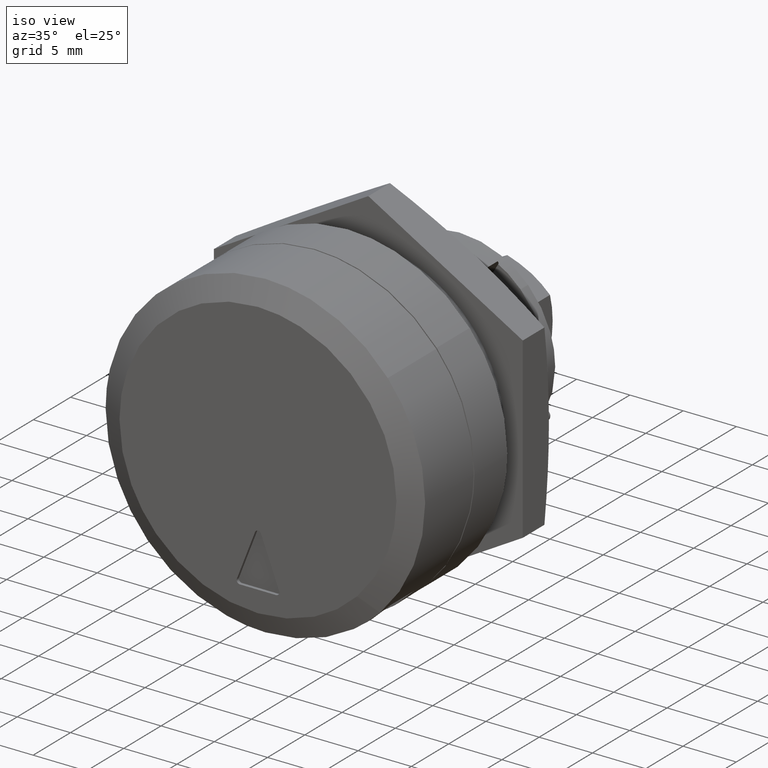
[diagram: clean part render]
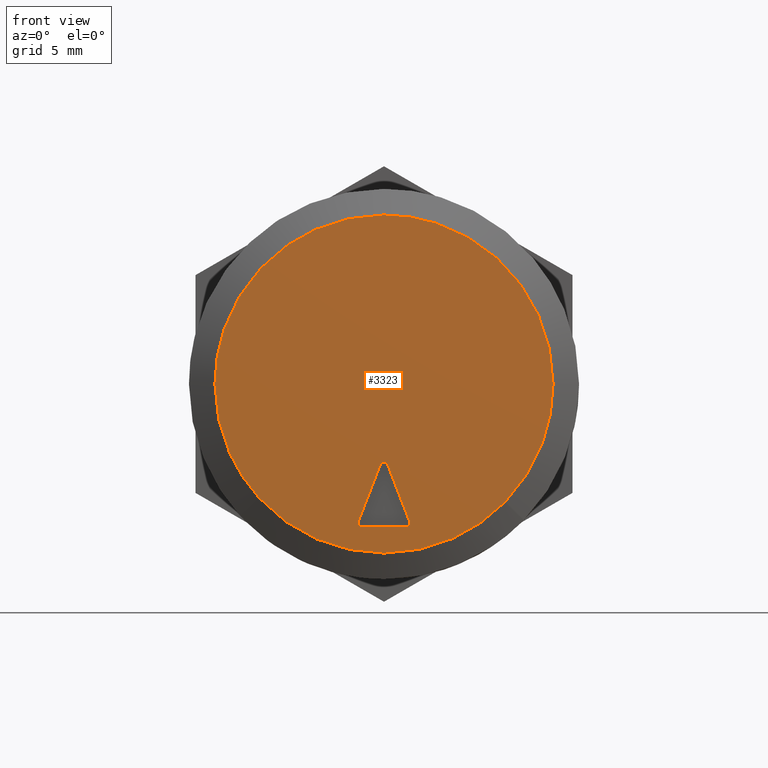
[diagram: tour spotlight — one face highlighted and labeled with its STEP entity id]
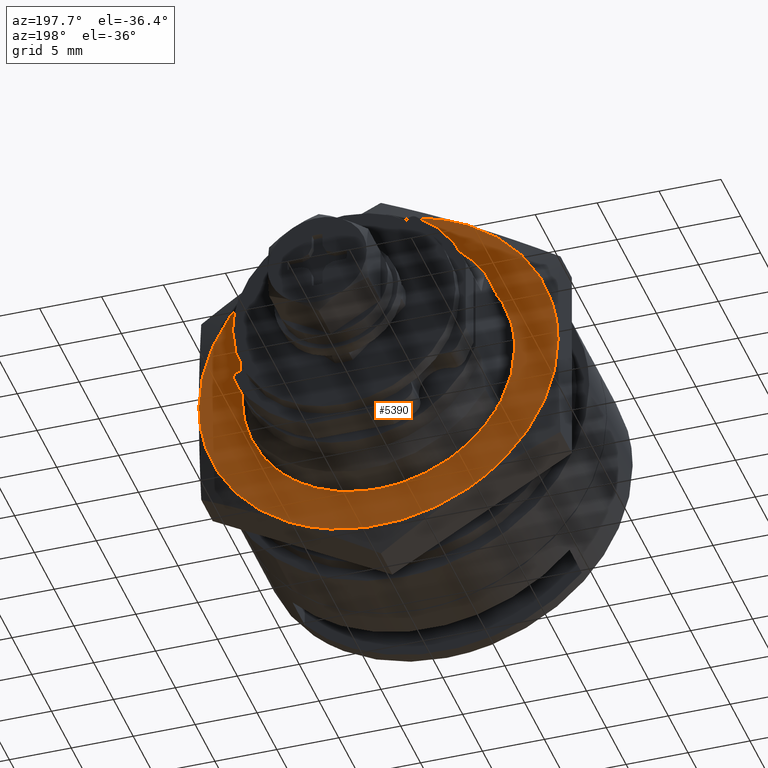
[diagram: tour spotlight — one face highlighted and labeled with its STEP entity id]
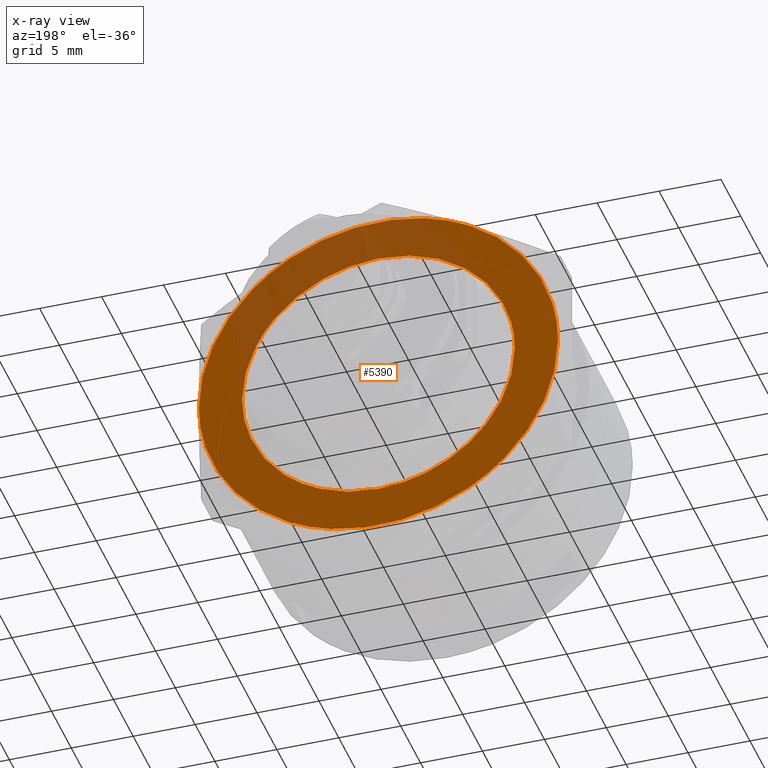
[diagram: x-ray of the same camera — body ghosted, this tour face saturated]
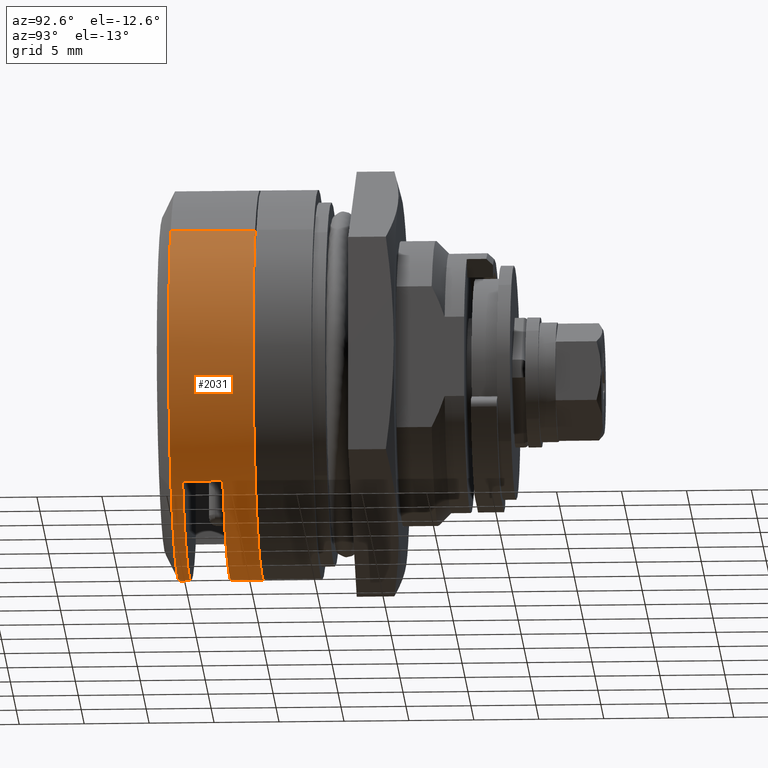
[diagram: tour spotlight — one face highlighted and labeled with its STEP entity id]
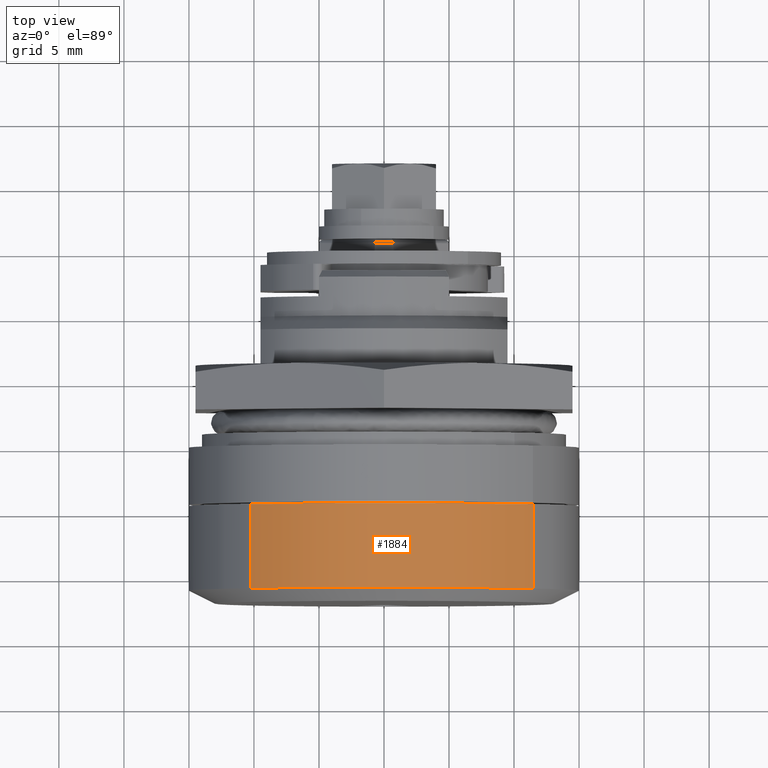
[diagram: tour spotlight — one face highlighted and labeled with its STEP entity id]
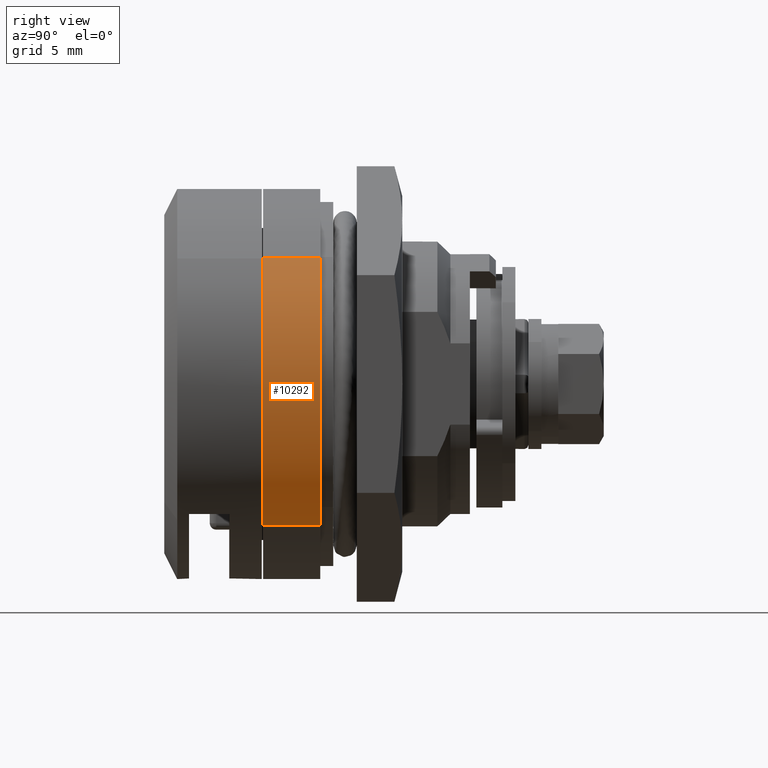
[diagram: tour spotlight — one face highlighted and labeled with its STEP entity id]
A machine part: a face-by-face anatomy tour. The part has 214 B-rep faces; the first image is the clean iso view, then the 5 largest visible faces are spotlighted one at a time (largest first), each with its STEP entity span.

Face 1 — front view, entity #3323. In plain terms, the highlighted face is a freeform B-spline surface patch.
Definition (entity closure, byte-faithful):
#911=CARTESIAN_POINT('',(-12.0,0.0,-13.0));
#912=VERTEX_POINT('',#911);
#913=CARTESIAN_POINT('',(-12.000000152438821,-9.316462147315200,-9.066615422653708));
#914=VERTEX_POINT('',#913);
#915=CARTESIAN_POINT('',(-12.0,0.0,-13.0));
#916=CARTESIAN_POINT('',(-12.000000015048110,-0.919679962936393,-13.000151477299420));
#917=CARTESIAN_POINT('',(-12.000000041602130,-2.542561584886363,-12.827024814932029));
#918=CARTESIAN_POINT('',(-12.000000081559589,-4.984603803596667,-12.089382059892291));
#919=CARTESIAN_POINT('',(-12.000000118657150,-7.251844494267134,-10.907185220064671));
#920=CARTESIAN_POINT('',(-12.000000141945280,-8.675145754781404,-9.725794053252749));
#921=CARTESIAN_POINT('',(-12.000000152438821,-9.316462147315200,-9.066615422653708));
#922=B_SPLINE_CURVE_WITH_KNOTS('',3,(#915,#916,#917,#918,#919,#920,#921),.UNSPECIFIED.,.F.,.U.,(4,1,1,1,4),(0.000000018140970,2.759011826455566,4.868852735689525,7.627854665548858,10.386866473861479),.UNSPECIFIED.);
#923=EDGE_CURVE('',#912,#914,#922,.T.);
#925=CARTESIAN_POINT('',(-11.999999848085141,9.584605882547256,-8.782673160848001));
#926=VERTEX_POINT('',#925);
#927=CARTESIAN_POINT('',(-11.999999848085141,9.584605882547256,-8.782673160848001));
#928=CARTESIAN_POINT('',(-11.999999856198770,9.072702271723482,-9.341422307882418));
#929=CARTESIAN_POINT('',(-11.999999872005461,8.075422711544398,-10.254785107212239));
#930=CARTESIAN_POINT('',(-11.999999898378309,6.411515894942661,-11.359618600989290));
#931=CARTESIAN_POINT('',(-11.999999926983371,4.606756568208613,-12.217407289992440));
#932=CARTESIAN_POINT('',(-11.999999961299119,2.441724718858577,-12.844032294940961));
#933=CARTESIAN_POINT('',(-11.999999986654350,0.841992042975007,-13.000098156035840));
#934=CARTESIAN_POINT('',(-12.0,0.0,-13.0));
#935=B_SPLINE_CURVE_WITH_KNOTS('',3,(#927,#928,#929,#930,#931,#932,#933,#934),.UNSPECIFIED.,.F.,.U.,(4,1,1,1,1,4),(0.000000019269073,2.273363186650766,4.041538777810411,5.978101250578590,8.251468486434568,10.777427251723600),.UNSPECIFIED.);
#936=EDGE_CURVE('',#926,#912,#935,.T.);
#1001=CARTESIAN_POINT('',(-12.0,-12.999999999999909,0.000001524951381));
#1002=VERTEX_POINT('',#1001);
#1003=CARTESIAN_POINT('',(-12.000000152438821,-9.316462147315200,-9.066615422653708));
#1004=CARTESIAN_POINT('',(-12.000000141421310,-9.954390171507482,-8.411326201624489));
#1005=CARTESIAN_POINT('',(-12.000000120582150,-10.928553954523190,-7.171872057518602));
#1006=CARTESIAN_POINT('',(-12.000000088628889,-11.931018232567750,-5.271387699067865));
#1007=CARTESIAN_POINT('',(-12.000000062098930,-12.495723037490320,-3.693460596470620));
#1008=CARTESIAN_POINT('',(-12.000000032947950,-12.894592737089971,-1.959646847090359));
#1009=CARTESIAN_POINT('',(-12.000000012740109,-13.000077419382309,-0.757743193792093));
#1010=CARTESIAN_POINT('',(-12.0,-12.999999999999909,0.000001524951381));
#1011=B_SPLINE_CURVE_WITH_KNOTS('',3,(#1003,#1004,#1005,#1006,#1007,#1008,#1009,#1010),.UNSPECIFIED.,.F.,.U.,(4,1,1,1,1,4),(0.000000016242499,2.743540714113641,4.703216927274964,6.427715221822490,7.760300117512838,10.033518823041220),.UNSPECIFIED.);
#1012=EDGE_CURVE('',#914,#1002,#1011,.T.);
#1091=CARTESIAN_POINT('',(-12.0,12.999999999999909,-0.000001524951578));
#1092=VERTEX_POINT('',#1091);
#1093=CARTESIAN_POINT('',(-12.0,12.999999999999909,-0.000001524951578));
#1094=CARTESIAN_POINT('',(-11.999999980018771,13.000385948258010,-1.155180492682295));
#1095=CARTESIAN_POINT('',(-11.999999944404379,12.723661137702811,-3.214155735879978));
#1096=CARTESIAN_POINT('',(-11.999999892303761,11.552321180139939,-6.226260350726116));
#1097=CARTESIAN_POINT('',(-11.999999862812320,10.365318962939631,-7.931247397927341));
#1098=CARTESIAN_POINT('',(-11.999999848085141,9.584605882547256,-8.782673160848001));
#1099=B_SPLINE_CURVE_WITH_KNOTS('',3,(#1093,#1094,#1095,#1096,#1097,#1098),.UNSPECIFIED.,.F.,.U.,(4,1,1,4),(4.080686E-009,3.465452551908194,6.177544267561840,9.642996815408528),.UNSPECIFIED.);
#1100=EDGE_CURVE('',#1092,#926,#1099,.T.);
#1102=CARTESIAN_POINT('',(-12.0,0.0,13.0));
#1103=VERTEX_POINT('',#1102);
#1104=CARTESIAN_POINT('',(-12.0,0.0,13.0));
#1105=CARTESIAN_POINT('',(-12.000000000000020,0.983813325752117,13.000223143433690));
#1106=CARTESIAN_POINT('',(-12.0,2.419506724860229,12.836175065007760));
#1107=CARTESIAN_POINT('',(-12.000000000000011,4.518261988779834,12.234543283883029));
#1108=CARTESIAN_POINT('',(-12.0,6.226117525003328,11.477522776477800));
#1109=CARTESIAN_POINT('',(-11.999999999999989,7.899220347690285,10.381673838327000));
#1110=CARTESIAN_POINT('',(-11.999999999999980,9.316680527343044,9.128314430869544));
#1111=CARTESIAN_POINT('',(-12.0,10.405938269971120,7.849754184187671));
#1112=CARTESIAN_POINT('',(-12.000000000000050,11.441731982581141,6.268359644291379));
#1113=CARTESIAN_POINT('',(-12.000000000000041,12.162885517440740,4.719075871125378));
#1114=CARTESIAN_POINT('',(-12.0,12.820823986583820,2.525841224548165));
#1115=CARTESIAN_POINT('',(-12.000000000000069,13.000282108281329,1.037003874066209));
#1116=CARTESIAN_POINT('',(-12.0,12.999999999999909,-0.000001524951578));
#1117=B_SPLINE_CURVE_WITH_KNOTS('',3,(#1104,#1105,#1106,#1107,#1108,#1109,#1110,#1111,#1112,#1113,#1114,#1115,#1116),.UNSPECIFIED.,.F.,.U.,(4,1,1,1,1,1,1,1,1,1,4),(0.000000063733694,2.951365858185291,4.307420317168457,6.540914454134750,8.535100663423348,10.289919153352949,12.204351521815040,13.560406796004211,15.953428008186901,17.309470791582552,20.420385141431389),.UNSPECIFIED.);
#1118=EDGE_CURVE('',#1103,#1092,#1117,.T.);
#1120=CARTESIAN_POINT('',(-12.0,-12.999999999999909,0.000001524951381));
#1121=CARTESIAN_POINT('',(-12.0,-13.000109554960700,0.877438647057232));
#1122=CARTESIAN_POINT('',(-12.000000000000020,-12.824393500372990,2.605689032999154));
#1123=CARTESIAN_POINT('',(-11.999999999999959,-12.128113229962111,4.851348779831528));
#1124=CARTESIAN_POINT('',(-12.000000000000020,-11.235746822990491,6.610459858897188));
#1125=CARTESIAN_POINT('',(-11.999999999999989,-10.080819175212531,8.305184580099553));
#1126=CARTESIAN_POINT('',(-12.000000000000041,-8.637911342323438,9.811493114748716));
#1127=CARTESIAN_POINT('',(-11.999999999999920,-6.952387201545800,11.029572369780389));
#1128=CARTESIAN_POINT('',(-12.000000000000041,-5.287393600638901,11.926132856466390));
#1129=CARTESIAN_POINT('',(-12.000000000000069,-3.030993108161917,12.749305796638140));
#1130=CARTESIAN_POINT('',(-11.999999999999750,-1.143358399296071,13.000344155762710));
#1131=CARTESIAN_POINT('',(-12.0,0.0,13.0));
#1132=B_SPLINE_CURVE_WITH_KNOTS('',3,(#1120,#1121,#1122,#1123,#1124,#1125,#1126,#1127,#1128,#1129,#1130,#1131),.UNSPECIFIED.,.F.,.U.,(4,1,1,1,1,1,1,1,1,4),(0.000000063916087,2.632296383756078,5.184863639251589,7.019514645310133,8.535099944566220,11.326898614056841,13.241340694329160,14.756918642442930,16.990405842883749,20.420383422452790),.UNSPECIFIED.);
#1133=EDGE_CURVE('',#1002,#1103,#1132,.T.);
#3118=CARTESIAN_POINT('',(-12.0,-0.279839440321647,-6.191880216239360));
#3119=VERTEX_POINT('',#3118);
#3120=CARTESIAN_POINT('',(-12.0,0.279839440597325,-6.191880216952881));
#3121=VERTEX_POINT('',#3120);
#3122=CARTESIAN_POINT('',(-12.0,-0.279839440321647,-6.191880216239360));
#3123=CARTESIAN_POINT('',(-11.999999999999989,-0.258374207550838,-6.135670470715750));
#3124=CARTESIAN_POINT('',(-12.000000000000030,-0.194725967789389,-6.055870872459950));
#3125=CARTESIAN_POINT('',(-11.999999999999959,-0.075641612627198,-6.003706631123224));
#3126=CARTESIAN_POINT('',(-12.000000000000041,0.022859923352837,-5.996311409355410));
#3127=CARTESIAN_POINT('',(-11.999999999999959,0.119144279778014,-6.018368614342978));
#3128=CARTESIAN_POINT('',(-12.000000000000060,0.216125610598961,-6.079610942148034));
#3129=CARTESIAN_POINT('',(-11.999999999999940,0.263646126875724,-6.149807007716513));
#3130=CARTESIAN_POINT('',(-12.0,0.279839440597325,-6.191880216952881));
#3131=B_SPLINE_CURVE_WITH_KNOTS('',3,(#3122,#3123,#3124,#3125,#3126,#3127,#3128,#3129,#3130),.UNSPECIFIED.,.F.,.U.,(4,1,1,1,1,1,4),(0.000000756291302,0.180357927171817,0.293096622276119,0.383249457891445,0.473431042042785,0.586165272018019,0.721429516173619),.UNSPECIFIED.);
#3132=EDGE_CURVE('',#3119,#3121,#3131,.T.);
#3153=CARTESIAN_POINT('',(-12.0,-1.979839440597330,-10.591880216952900));
#3154=VERTEX_POINT('',#3153);
#3155=CARTESIAN_POINT('',(-12.0,-1.979839440597330,-10.591880216952900));
#3156=CARTESIAN_POINT('',(-12.0,-0.279839440321647,-6.191880216239360));
#3157=QUASI_UNIFORM_CURVE('',1,(#3155,#3156),.UNSPECIFIED.,.F.,.U.);
#3158=EDGE_CURVE('',#3154,#3119,#3157,.T.);
#3184=CARTESIAN_POINT('',(-12.0,-1.700000000000000,-11.0));
#3185=VERTEX_POINT('',#3184);
#3186=CARTESIAN_POINT('',(-12.0,-1.700000000000000,-11.0));
#3187=CARTESIAN_POINT('',(-12.000000000000011,-1.766769176095426,-11.000305997040650));
#3188=CARTESIAN_POINT('',(-11.999999999999989,-1.869325680690929,-10.964253093585180));
#3189=CARTESIAN_POINT('',(-12.0,-1.962965556508403,-10.857780738359130));
#3190=CARTESIAN_POINT('',(-12.0,-2.008412932557316,-10.736632126377330));
#3191=CARTESIAN_POINT('',(-12.0,-1.999664680783060,-10.642743669029830));
#3192=CARTESIAN_POINT('',(-12.0,-1.979839440597330,-10.591880216952900));
#3193=B_SPLINE_CURVE_WITH_KNOTS('',3,(#3186,#3187,#3188,#3189,#3190,#3191,#3192),.UNSPECIFIED.,.F.,.U.,(4,1,1,1,4),(0.000000625449621,0.200047991925948,0.309129929953099,0.418260530807096,0.581936597731967),.UNSPECIFIED.);
#3194=EDGE_CURVE('',#3185,#3154,#3193,.T.);
#3211=CARTESIAN_POINT('',(-12.0,1.700000000000000,-11.0));
#3212=VERTEX_POINT('',#3211);
#3213=CARTESIAN_POINT('',(-12.0,1.700000000000000,-11.0));
#3214=CARTESIAN_POINT('',(-12.0,-1.700000000000000,-11.0));
#3215=QUASI_UNIFORM_CURVE('',1,(#3213,#3214),.UNSPECIFIED.,.F.,.U.);
#3216=EDGE_CURVE('',#3212,#3185,#3215,.T.);
#3242=CARTESIAN_POINT('',(-12.0,1.979839440597330,-10.591880216952900));
#3243=VERTEX_POINT('',#3242);
#3244=CARTESIAN_POINT('',(-12.0,1.979839440597330,-10.591880216952900));
#3245=CARTESIAN_POINT('',(-12.0,1.995171197645803,-10.631436537591229));
#3246=CARTESIAN_POINT('',(-12.0,2.009625809826327,-10.723312080552491));
#3247=CARTESIAN_POINT('',(-12.000000000000011,1.967587385704804,-10.860540046720310));
#3248=CARTESIAN_POINT('',(-11.999999999999959,1.857417331567697,-10.971122689053050));
#3249=CARTESIAN_POINT('',(-12.000000000000020,1.754587073012114,-11.000142618594870));
#3250=CARTESIAN_POINT('',(-12.0,1.700000000000000,-11.0));
#3251=B_SPLINE_CURVE_WITH_KNOTS('',3,(#3244,#3245,#3246,#3247,#3248,#3249,#3250),.UNSPECIFIED.,.F.,.U.,(4,1,1,1,4),(0.000000625449649,0.127292544665963,0.272807293228489,0.418260530807120,0.581936597731958),.UNSPECIFIED.);
#3252=EDGE_CURVE('',#3243,#3212,#3251,.T.);
#3269=CARTESIAN_POINT('',(-12.0,0.279839440597325,-6.191880216952881));
#3270=CARTESIAN_POINT('',(-12.0,1.979839440597330,-10.591880216952900));
#3271=QUASI_UNIFORM_CURVE('',1,(#3269,#3270),.UNSPECIFIED.,.F.,.U.);
#3272=EDGE_CURVE('',#3121,#3243,#3271,.T.);
#3302=CARTESIAN_POINT('',(-12.0,-14.298699949606860,14.298699949606950));
#3303=CARTESIAN_POINT('',(-12.0,-14.298699949606860,-14.298700646981301));
#3304=CARTESIAN_POINT('',(-12.0,14.298700646981199,14.298699949606950));
#3305=CARTESIAN_POINT('',(-12.0,14.298700646981199,-14.298700646981301));
#3306=B_SPLINE_SURFACE_WITH_KNOTS('',1,1,((#3302,#3304),(#3303,#3305)),.UNSPECIFIED.,.F.,.F.,.U.,(2,2),(2,2),(0.0,28.597400596588251),(0.0,28.597400596588059),.UNSPECIFIED.);
#3307=ORIENTED_EDGE('',*,*,#1118,.T.);
#3308=ORIENTED_EDGE('',*,*,#1100,.T.);
#3309=ORIENTED_EDGE('',*,*,#936,.T.);
#3310=ORIENTED_EDGE('',*,*,#923,.T.);
#3311=ORIENTED_EDGE('',*,*,#1012,.T.);
#3312=ORIENTED_EDGE('',*,*,#1133,.T.);
#3313=EDGE_LOOP('',(#3307,#3308,#3309,#3310,#3311,#3312));
#3314=FACE_OUTER_BOUND('',#3313,.T.);
#3315=ORIENTED_EDGE('',*,*,#3252,.F.);
#3316=ORIENTED_EDGE('',*,*,#3272,.F.);
#3317=ORIENTED_EDGE('',*,*,#3132,.F.);
#3318=ORIENTED_EDGE('',*,*,#3158,.F.);
#3319=ORIENTED_EDGE('',*,*,#3194,.F.);
#3320=ORIENTED_EDGE('',*,*,#3216,.F.);
#3321=EDGE_LOOP('',(#3315,#3316,#3317,#3318,#3319,#3320));
#3322=FACE_BOUND('',#3321,.T.);
#3323=ADVANCED_FACE('',(#3314,#3322),#3306,.F.);

Face 2 — auxiliary view, entity #5390. An x-ray twin of the same camera follows (body ghosted, this face saturated) — the face is partly hidden behind the body. In plain terms, the highlighted face is a freeform B-spline surface patch.
Definition (entity closure, byte-faithful):
#4111=CARTESIAN_POINT('',(61.198422999999998,-7.571900083592382,-7.979117747920952));
#4112=VERTEX_POINT('',#4111);
#4118=CARTESIAN_POINT('',(61.198423000000012,0.0,-11.0));
#4119=VERTEX_POINT('',#4118);
#4120=CARTESIAN_POINT('',(61.198423000000012,0.0,-11.0));
#4121=CARTESIAN_POINT('',(61.198423000000012,-0.739454084071970,-11.000097790272379));
#4122=CARTESIAN_POINT('',(61.198423000000020,-2.174815417914026,-10.854735065343791));
#4123=CARTESIAN_POINT('',(61.198423000000027,-4.138742403636235,-10.254602025094780));
#4124=CARTESIAN_POINT('',(61.198423000000020,-5.963499545313847,-9.317277022889421));
#4125=CARTESIAN_POINT('',(61.198423000000119,-7.035587389978425,-8.488194437969778));
#4126=CARTESIAN_POINT('',(61.198422999999998,-7.571900083592382,-7.979117747920952));
#4127=B_SPLINE_CURVE_WITH_KNOTS('',3,(#4120,#4121,#4122,#4123,#4124,#4125,#4126),.UNSPECIFIED.,.F.,.U.,(4,1,1,1,4),(9.791151E-009,2.218353961742886,4.306211761484322,6.133095377150023,8.351449329096610),.UNSPECIFIED.);
#4128=EDGE_CURVE('',#4119,#4112,#4127,.T.);
#4130=CARTESIAN_POINT('',(61.198422999999998,10.999999999999870,-0.000001654796536));
#4131=VERTEX_POINT('',#4130);
#4132=CARTESIAN_POINT('',(61.198422999999998,10.999999999999870,-0.000001654796536));
#4133=CARTESIAN_POINT('',(61.198423000000084,11.000249713231520,-0.899962798037210));
#4134=CARTESIAN_POINT('',(61.198422999999693,10.838925057524810,-2.204741274989637));
#4135=CARTESIAN_POINT('',(61.198423000000268,10.278336800084951,-4.012588628308397));
#4136=CARTESIAN_POINT('',(61.198422999999828,9.592609226911948,-5.485864771897204));
#4137=CARTESIAN_POINT('',(61.198423000000084,8.442907092679299,-7.161776378843431));
#4138=CARTESIAN_POINT('',(61.198423000000048,7.017225528165081,-8.552883342067462));
#4139=CARTESIAN_POINT('',(61.198422999999899,5.328982783415428,-9.680833574350160));
#4140=CARTESIAN_POINT('',(61.198423000000410,3.681075646689312,-10.423470856474550));
#4141=CARTESIAN_POINT('',(61.198422999999273,1.844841930265737,-10.895342348092790));
#4142=CARTESIAN_POINT('',(61.198423000000894,0.629951495030944,-11.000052626479359));
#4143=CARTESIAN_POINT('',(61.198423000000012,0.0,-11.0));
#4144=B_SPLINE_CURVE_WITH_KNOTS('',3,(#4132,#4133,#4134,#4135,#4136,#4137,#4138,#4139,#4140,#4141,#4142,#4143),.UNSPECIFIED.,.F.,.U.,(4,1,1,1,1,1,1,1,1,4),(0.000000012175285,2.699808162006724,3.914743325681265,5.669642323885430,7.559515205630680,9.989328124876067,11.609225180889471,13.634110700107790,15.389011339415610,17.278867078949780),.UNSPECIFIED.);
#4145=EDGE_CURVE('',#4131,#4119,#4144,.T.);
#4147=CARTESIAN_POINT('',(61.198423000000012,0.0,11.0));
#4148=VERTEX_POINT('',#4147);
#4149=CARTESIAN_POINT('',(61.198423000000012,0.0,11.0));
#4150=CARTESIAN_POINT('',(61.198422999999963,0.899948890115045,11.000199146383441));
#4151=CARTESIAN_POINT('',(61.198423000000197,2.384736691426862,10.816750586513400));
#4152=CARTESIAN_POINT('',(61.198423000000027,4.181230207954177,10.210893107058361));
#4153=CARTESIAN_POINT('',(61.198423000000282,5.634821047398008,9.490377301314851));
#4154=CARTESIAN_POINT('',(61.198422999999401,7.012762248168381,8.545067413474980));
#4155=CARTESIAN_POINT('',(61.198423000000467,8.305706089393869,7.283408962767862));
#4156=CARTESIAN_POINT('',(61.198423000000020,9.461477985395757,5.725122945809591));
#4157=CARTESIAN_POINT('',(61.198423000000098,10.345641847685760,3.941591553578281));
#4158=CARTESIAN_POINT('',(61.198423000000133,10.887608373068970,1.934837866143467));
#4159=CARTESIAN_POINT('',(61.198422999999949,11.000047383030291,0.629948646935549));
#4160=CARTESIAN_POINT('',(61.198422999999998,10.999999999999870,-0.000001654796536));
#4161=B_SPLINE_CURVE_WITH_KNOTS('',3,(#4149,#4150,#4151,#4152,#4153,#4154,#4155,#4156,#4157,#4158,#4159,#4160),.UNSPECIFIED.,.F.,.U.,(4,1,1,1,1,1,1,1,1,4),(0.000000011595560,2.699808453036182,4.454709157643125,5.669642935489103,7.559516020412634,9.449371411052258,11.069256351171919,13.364127002619810,15.389013000534019,17.278868944302861),.UNSPECIFIED.);
#4162=EDGE_CURVE('',#4148,#4131,#4161,.T.);
#4164=CARTESIAN_POINT('',(61.198422999999998,-8.399112370380738,7.103162701555467));
#4165=VERTEX_POINT('',#4164);
#4166=CARTESIAN_POINT('',(61.198422999999998,-8.399112370380738,7.103162701555467));
#4167=CARTESIAN_POINT('',(61.198422999999977,-7.852814464816217,7.749373096202739));
#4168=CARTESIAN_POINT('',(61.198423000000084,-6.610114183059141,8.914765742100489));
#4169=CARTESIAN_POINT('',(61.198422999999877,-4.569472858929516,10.090315945947641));
#4170=CARTESIAN_POINT('',(61.198423000000219,-2.339361206401376,10.826804370623259));
#4171=CARTESIAN_POINT('',(61.198422999999913,-0.846190680610783,11.000179225997380));
#4172=CARTESIAN_POINT('',(61.198423000000012,0.0,11.0));
#4173=B_SPLINE_CURVE_WITH_KNOTS('',3,(#4166,#4167,#4168,#4169,#4170,#4171,#4172),.UNSPECIFIED.,.F.,.U.,(4,1,1,1,4),(0.000000023299970,2.538535112296983,5.077059336603969,7.018301262955562,9.556836351951757),.UNSPECIFIED.);
#4174=EDGE_CURVE('',#4165,#4148,#4173,.T.);
#4211=CARTESIAN_POINT('',(61.198422999999998,-10.999999999999879,0.000001654796277));
#4212=VERTEX_POINT('',#4211);
#4213=CARTESIAN_POINT('',(61.198422999999998,-10.999999999999879,0.000001654796277));
#4214=CARTESIAN_POINT('',(61.198423000000062,-11.000041702413951,0.603279431440876));
#4215=CARTESIAN_POINT('',(61.198423000000062,-10.897185187162441,1.850043671156531));
#4216=CARTESIAN_POINT('',(61.198423000000027,-10.423609794290179,3.687550918551116));
#4217=CARTESIAN_POINT('',(61.198423000000219,-9.602830690738548,5.487565632783728));
#4218=CARTESIAN_POINT('',(61.198422999999899,-8.840679563345361,6.581154899422768));
#4219=CARTESIAN_POINT('',(61.198422999999998,-8.399112370380738,7.103162701555467));
#4220=B_SPLINE_CURVE_WITH_KNOTS('',3,(#4213,#4214,#4215,#4216,#4217,#4218,#4219),.UNSPECIFIED.,.F.,.U.,(4,1,1,1,4),(0.000000012090066,1.809838445908230,3.740341227372649,5.670827920628993,7.721978961531560),.UNSPECIFIED.);
#4221=EDGE_CURVE('',#4212,#4165,#4220,.T.);
#4223=CARTESIAN_POINT('',(61.198422999999998,-7.571900083592382,-7.979117747920952));
#4224=CARTESIAN_POINT('',(61.198422999999998,-8.145362583266440,-7.435100119790734));
#4225=CARTESIAN_POINT('',(61.198423000000027,-9.083377308721223,-6.329662414952750));
#4226=CARTESIAN_POINT('',(61.198423000000020,-10.058390981802120,-4.575134689073413));
#4227=CARTESIAN_POINT('',(61.198422999999963,-10.794292511397540,-2.510668852306287));
#4228=CARTESIAN_POINT('',(61.198423000000012,-11.000311572456891,-0.976467357879441));
#4229=CARTESIAN_POINT('',(61.198422999999998,-10.999999999999879,0.000001654796277));
#4230=B_SPLINE_CURVE_WITH_KNOTS('',3,(#4223,#4224,#4225,#4226,#4227,#4228,#4229),.UNSPECIFIED.,.F.,.U.,(4,1,1,1,4),(5.554664E-009,2.371346060195135,4.324219765684576,5.998110134610279,8.927420374097487),.UNSPECIFIED.);
#4231=EDGE_CURVE('',#4112,#4212,#4230,.T.);
#4984=CARTESIAN_POINT('',(61.198423000000012,7.250000192669780,-12.557367677437259));
#4985=VERTEX_POINT('',#4984);
#5028=CARTESIAN_POINT('',(61.198423000000012,14.500000000000000,0.0));
#5029=VERTEX_POINT('',#5028);
#5079=CARTESIAN_POINT('',(61.198423000000012,7.249998893631220,12.557369927437140));
#5080=VERTEX_POINT('',#5079);
#5123=CARTESIAN_POINT('',(61.198423000000012,-7.249998759657210,12.557368427437019));
#5124=VERTEX_POINT('',#5123);
#5167=CARTESIAN_POINT('',(61.198423000000012,-14.500000000000000,0.0));
#5168=VERTEX_POINT('',#5167);
#5210=CARTESIAN_POINT('',(61.198423000000012,-7.249999625682521,-12.557366927437300));
#5211=VERTEX_POINT('',#5210);
#5295=CARTESIAN_POINT('',(61.198423000000012,14.500000000000000,0.0));
#5296=CARTESIAN_POINT('',(61.198423000000190,14.500048619899330,-0.751312819705502));
#5297=CARTESIAN_POINT('',(61.198422999999792,14.389107018603630,-2.174832711348100));
#5298=CARTESIAN_POINT('',(61.198423000000027,13.973494919474231,-3.990886288046406));
#5299=CARTESIAN_POINT('',(61.198422999999771,13.367095684039089,-5.707742349242759));
#5300=CARTESIAN_POINT('',(61.198423000000624,12.577971585857060,-7.307986920110959));
#5301=CARTESIAN_POINT('',(61.198422999999572,11.396868911993220,-9.044665804273441));
#5302=CARTESIAN_POINT('',(61.198423000000879,9.711337411086742,-10.889292151120280));
#5303=CARTESIAN_POINT('',(61.198423000000112,8.208979218113823,-12.003948679062590));
#5304=CARTESIAN_POINT('',(61.198423000000012,7.250000192669780,-12.557367677437259));
#5305=B_SPLINE_CURVE_WITH_KNOTS('',3,(#5295,#5296,#5297,#5298,#5299,#5300,#5301,#5302,#5303,#5304),.UNSPECIFIED.,.F.,.U.,(4,1,1,1,1,1,1,4),(0.000000032306049,2.253935179887051,4.270617979295457,5.575538081684933,7.710809624117950,9.608868117909282,11.862821046787040,15.184406167288721),.UNSPECIFIED.);
#5306=EDGE_CURVE('',#5029,#4985,#5305,.T.);
#5311=CARTESIAN_POINT('',(61.198423000000012,-15.948549943792370,-15.948500592984450));
#5312=CARTESIAN_POINT('',(61.198423000000012,-15.948549943792370,15.948559299541690));
#5313=CARTESIAN_POINT('',(61.198423000000012,15.948550721632991,-15.948500592984450));
#5314=CARTESIAN_POINT('',(61.198423000000012,15.948550721632991,15.948559299541690));
#5315=B_SPLINE_SURFACE_WITH_KNOTS('',1,1,((#5311,#5313),(#5312,#5314)),.UNSPECIFIED.,.F.,.F.,.U.,(2,2),(2,2),(0.0,31.897059892526130),(0.0,31.897100665425359),.UNSPECIFIED.);
#5316=CARTESIAN_POINT('',(61.198423000000012,7.249998893631220,12.557369927437140));
#5317=CARTESIAN_POINT('',(61.198423000000048,7.832173130002479,12.221283593843070));
#5318=CARTESIAN_POINT('',(61.198422999999977,9.015395847131602,11.423622874743691));
#5319=CARTESIAN_POINT('',(61.198423000000020,10.508612412298170,10.059107906541190));
#5320=CARTESIAN_POINT('',(61.198423000000012,11.948360109242300,8.319401940505358));
#5321=CARTESIAN_POINT('',(61.198422999999991,13.084003497381421,6.406996437439836));
#5322=CARTESIAN_POINT('',(61.198422999999977,13.940170479850750,4.187383387872015));
#5323=CARTESIAN_POINT('',(61.198423000000069,14.400842530525770,2.095750345095704));
#5324=CARTESIAN_POINT('',(61.198422999999941,14.500028110571121,0.672221302529086));
#5325=CARTESIAN_POINT('',(61.198423000000012,14.500000000000000,0.0));
#5326=B_SPLINE_CURVE_WITH_KNOTS('',3,(#5316,#5317,#5318,#5319,#5320,#5321,#5322,#5323,#5324,#5325),.UNSPECIFIED.,.F.,.U.,(4,1,1,1,1,1,1,4),(0.000000032305390,2.016665407455076,4.270618735379225,6.050054913805214,8.778467116661069,10.913790152512700,13.167743480437320,15.184408855587611),.UNSPECIFIED.);
#5327=EDGE_CURVE('',#5080,#5029,#5326,.T.);
#5328=ORIENTED_EDGE('',*,*,#5327,.F.);
#5329=CARTESIAN_POINT('',(61.198423000000012,-7.249998759657210,12.557368427437019));
#5330=CARTESIAN_POINT('',(61.198422999999949,-6.291235653011920,13.111171894486111));
#5331=CARTESIAN_POINT('',(61.198423000000012,-4.647776924721195,13.823223252447100));
#5332=CARTESIAN_POINT('',(61.198423000000027,-2.213464929864287,14.380269143137630));
#5333=CARTESIAN_POINT('',(61.198422999999707,0.118053985186283,14.571523492869630));
#5334=CARTESIAN_POINT('',(61.198423000000062,2.650722421189501,14.343061032792161));
#5335=CARTESIAN_POINT('',(61.198423000000332,5.132179018029286,13.634302511985300));
#5336=CARTESIAN_POINT('',(61.198422999999487,6.599365154438225,12.933058949989750));
#5337=CARTESIAN_POINT('',(61.198423000000012,7.249998893631220,12.557369927437140));
#5338=B_SPLINE_CURVE_WITH_KNOTS('',3,(#5329,#5330,#5331,#5332,#5333,#5334,#5335,#5336,#5337),.UNSPECIFIED.,.F.,.U.,(4,1,1,1,1,1,4),(0.000000032304436,3.321584693636115,5.338267214260013,7.473595542323515,10.320647186255609,12.930469232214350,15.184404068213309),.UNSPECIFIED.);
#5339=EDGE_CURVE('',#5124,#5080,#5338,.T.);
#5340=ORIENTED_EDGE('',*,*,#5339,.F.);
#5341=CARTESIAN_POINT('',(61.198423000000012,-14.500000000000000,0.0));
#5342=CARTESIAN_POINT('',(61.198423000000084,-14.500229506848450,1.107216649801722));
#5343=CARTESIAN_POINT('',(61.198422999999920,-14.295141290959540,2.886513534772744));
#5344=CARTESIAN_POINT('',(61.198423000000084,-13.537118649950090,5.348986122839114));
#5345=CARTESIAN_POINT('',(61.198422999999778,-12.622548754184679,7.242451088728262));
#5346=CARTESIAN_POINT('',(61.198423000000240,-11.396872173266599,9.044668443511663));
#5347=CARTESIAN_POINT('',(61.198422999999508,-9.711331796383972,10.889290610478120));
#5348=CARTESIAN_POINT('',(61.198423000000609,-8.208979591488069,12.003950220646921));
#5349=CARTESIAN_POINT('',(61.198423000000012,-7.249998759657210,12.557368427437019));
#5350=B_SPLINE_CURVE_WITH_KNOTS('',3,(#5341,#5342,#5343,#5344,#5345,#5346,#5347,#5348,#5349),.UNSPECIFIED.,.F.,.U.,(4,1,1,1,1,1,4),(0.000000032301035,3.321585501367036,5.338268512405513,7.710810433276433,9.608869126250575,11.862822291660860,15.184407760726719),.UNSPECIFIED.);
#5351=EDGE_CURVE('',#5168,#5124,#5350,.T.);
#5352=ORIENTED_EDGE('',*,*,#5351,.F.);
#5353=CARTESIAN_POINT('',(61.198423000000012,-7.249999625682521,-12.557366927437300));
#5354=CARTESIAN_POINT('',(61.198423000000084,-7.900681657153870,-12.181755597833000));
#5355=CARTESIAN_POINT('',(61.198422999999863,-9.077985670550936,-11.373891721392310));
#5356=CARTESIAN_POINT('',(61.198422999999991,-10.907769864835011,-9.674426725888157));
#5357=CARTESIAN_POINT('',(61.198423000000098,-12.385176452109130,-7.699243180753643));
#5358=CARTESIAN_POINT('',(61.198422999999977,-13.367082748893271,-5.707731398787407));
#5359=CARTESIAN_POINT('',(61.198423000000190,-13.999874218800329,-3.916236666014648));
#5360=CARTESIAN_POINT('',(61.198422999999700,-14.400850567960569,-2.095754642035472));
#5361=CARTESIAN_POINT('',(61.198423000000382,-14.500024612237480,-0.672220070866720));
#5362=CARTESIAN_POINT('',(61.198423000000012,-14.500000000000000,0.0));
#5363=B_SPLINE_CURVE_WITH_KNOTS('',3,(#5353,#5354,#5355,#5356,#5357,#5358,#5359,#5360,#5361,#5362),.UNSPECIFIED.,.F.,.U.,(4,1,1,1,1,1,1,4),(0.000000032302578,2.253935120887563,4.270617867509898,7.473596379853112,9.608867866396443,10.913787934629619,13.167740804510000,15.184405769836459),.UNSPECIFIED.);
#5364=EDGE_CURVE('',#5211,#5168,#5363,.T.);
#5365=ORIENTED_EDGE('',*,*,#5364,.F.);
#5366=CARTESIAN_POINT('',(61.198423000000012,7.250000192669780,-12.557367677437259));
#5367=CARTESIAN_POINT('',(61.198422999999927,6.599368442262547,-12.933065627093949));
#5368=CARTESIAN_POINT('',(61.198423000000190,5.311093661160662,-13.548750039911630));
#5369=CARTESIAN_POINT('',(61.198423000000084,3.530537033132582,-14.096823920461841));
#5370=CARTESIAN_POINT('',(61.198422999999579,1.468100360349192,-14.480938126354280));
#5371=CARTESIAN_POINT('',(61.198423000000609,-0.676906380362121,-14.559925633100731));
#5372=CARTESIAN_POINT('',(61.198422999999281,-2.954397334075071,-14.240988753425400));
#5373=CARTESIAN_POINT('',(61.198423000000737,-5.090156041106909,-13.640530180262980));
#5374=CARTESIAN_POINT('',(61.198422999999252,-6.462414536893656,-13.012207490966681));
#5375=CARTESIAN_POINT('',(61.198423000000012,-7.249999625682521,-12.557366927437300));
#5376=B_SPLINE_CURVE_WITH_KNOTS('',3,(#5366,#5367,#5368,#5369,#5370,#5371,#5372,#5373,#5374,#5375),.UNSPECIFIED.,.F.,.U.,(4,1,1,1,1,1,1,4),(0.000000032306131,2.253935276841633,4.270618162998858,5.575538321521780,8.541222148542971,10.676533825822609,12.455961189913930,15.184406820451740),.UNSPECIFIED.);
#5377=EDGE_CURVE('',#4985,#5211,#5376,.T.);
#5378=ORIENTED_EDGE('',*,*,#5377,.F.);
#5379=ORIENTED_EDGE('',*,*,#5306,.F.);
#5380=EDGE_LOOP('',(#5328,#5340,#5352,#5365,#5378,#5379));
#5381=FACE_OUTER_BOUND('',#5380,.T.);
#5382=ORIENTED_EDGE('',*,*,#4162,.T.);
#5383=ORIENTED_EDGE('',*,*,#4145,.T.);
#5384=ORIENTED_EDGE('',*,*,#4128,.T.);
#5385=ORIENTED_EDGE('',*,*,#4231,.T.);
#5386=ORIENTED_EDGE('',*,*,#4221,.T.);
#5387=ORIENTED_EDGE('',*,*,#4174,.T.);
#5388=EDGE_LOOP('',(#5382,#5383,#5384,#5385,#5386,#5387));
#5389=FACE_BOUND('',#5388,.T.);
#5390=ADVANCED_FACE('',(#5381,#5389),#5315,.F.);

Face 3 — auxiliary view, entity #2031. In plain terms, the highlighted face is a freeform B-spline surface patch.
Definition (entity closure, byte-faithful):
#938=CARTESIAN_POINT('',(-10.999999858290280,11.059160522309121,-10.133853545054400));
#939=VERTEX_POINT('',#938);
#945=CARTESIAN_POINT('',(-11.0,0.0,-15.0));
#946=VERTEX_POINT('',#945);
#947=CARTESIAN_POINT('',(-10.999999858290280,11.059160522309121,-10.133853545054400));
#948=CARTESIAN_POINT('',(-10.999999866979580,10.381039433086810,-10.874131631166771));
#949=CARTESIAN_POINT('',(-10.999999880361260,9.336718633637148,-11.805825684889790));
#950=CARTESIAN_POINT('',(-10.999999902800051,7.585578817319068,-12.976755491232970));
#951=CARTESIAN_POINT('',(-10.999999924948201,5.857110722433998,-13.875092981244810));
#952=CARTESIAN_POINT('',(-10.999999958505271,3.238297767069378,-14.754180935369030));
#953=CARTESIAN_POINT('',(-10.999999984645960,1.198236291150401,-15.000291304085010));
#954=CARTESIAN_POINT('',(-11.0,0.0,-15.0));
#955=B_SPLINE_CURVE_WITH_KNOTS('',3,(#947,#948,#949,#950,#951,#952,#953,#954),.UNSPECIFIED.,.F.,.U.,(4,1,1,1,1,4),(0.000000019609667,3.011720322359636,4.177556424986223,6.314877343248475,8.840857716298693,12.435492920126009),.UNSPECIFIED.);
#956=EDGE_CURVE('',#939,#946,#955,.T.);
#958=CARTESIAN_POINT('',(-11.000000142198470,-10.749764124788189,-10.461479439573720));
#959=VERTEX_POINT('',#958);
#960=CARTESIAN_POINT('',(-11.0,0.0,-15.0));
#961=CARTESIAN_POINT('',(-11.000000012798610,-0.967536026717644,-15.000134043212761));
#962=CARTESIAN_POINT('',(-11.000000034266360,-2.590429230427379,-14.842391312879670));
#963=CARTESIAN_POINT('',(-11.000000062661710,-4.737031493645608,-14.273510212469160));
#964=CARTESIAN_POINT('',(-11.000000090272991,-6.824362471395734,-13.430508081557210));
#965=CARTESIAN_POINT('',(-11.000000117269741,-8.865214914019111,-12.198632047137940));
#966=CARTESIAN_POINT('',(-11.000000135000100,-10.205607293105681,-11.020669815165400));
#967=CARTESIAN_POINT('',(-11.000000142198470,-10.749764124788189,-10.461479439573720));
#968=B_SPLINE_CURVE_WITH_KNOTS('',3,(#960,#961,#962,#963,#964,#965,#966,#967),.UNSPECIFIED.,.F.,.U.,(4,1,1,1,1,4),(0.000000017384380,2.902579610625702,4.868845832541960,6.647840152165738,9.644060537081156,11.984845991947450),.UNSPECIFIED.);
#969=EDGE_CURVE('',#946,#959,#968,.T.);
#1015=CARTESIAN_POINT('',(-11.0,-14.999999999999931,0.000001422510098));
#1016=VERTEX_POINT('',#1015);
#1017=CARTESIAN_POINT('',(-11.000000142198470,-10.749764124788189,-10.461479439573720));
#1018=CARTESIAN_POINT('',(-11.000000132214490,-11.464783958317160,-9.726962444310461));
#1019=CARTESIAN_POINT('',(-11.000000111858631,-12.649231257879370,-8.229388924258208));
#1020=CARTESIAN_POINT('',(-11.000000077548711,-13.961382222991370,-5.705222426500392));
#1021=CARTESIAN_POINT('',(-11.000000040569230,-14.798331567200259,-2.984667622099229));
#1022=CARTESIAN_POINT('',(-11.000000013933411,-15.000152784567170,-1.025068627617737));
#1023=CARTESIAN_POINT('',(-11.0,-14.999999999999931,0.000001422510098));
#1024=B_SPLINE_CURVE_WITH_KNOTS('',3,(#1017,#1018,#1019,#1020,#1021,#1022,#1023),.UNSPECIFIED.,.F.,.U.,(4,1,1,1,4),(0.000000015576903,3.075177202556199,5.698141417908051,8.501959174312031,11.577136824968390),.UNSPECIFIED.);
#1025=EDGE_CURVE('',#959,#1016,#1024,.T.);
#1027=CARTESIAN_POINT('',(-11.000000000000901,-11.485339263493330,9.648160058334472));
#1028=VERTEX_POINT('',#1027);
#1029=CARTESIAN_POINT('',(-11.0,-14.999999999999931,0.000001422510098));
#1030=CARTESIAN_POINT('',(-11.000000000000080,-15.000028516856039,0.709603732818874));
#1031=CARTESIAN_POINT('',(-11.000000000000179,-14.895238358557780,2.183383154606998));
#1032=CARTESIAN_POINT('',(-11.000000000000441,-14.432809046699379,4.267728825274006));
#1033=CARTESIAN_POINT('',(-11.000000000000520,-13.777121799901691,6.008181320772510));
#1034=CARTESIAN_POINT('',(-11.000000000000790,-12.862624540301921,7.811072892097385));
#1035=CARTESIAN_POINT('',(-11.000000000000799,-12.082294762323150,8.937712267832831));
#1036=CARTESIAN_POINT('',(-11.000000000000901,-11.485339263493330,9.648160058334472));
#1037=B_SPLINE_CURVE_WITH_KNOTS('',3,(#1029,#1030,#1031,#1032,#1033,#1034,#1035,#1036),.UNSPECIFIED.,.F.,.U.,(4,1,1,1,1,4),(3.433401E-009,2.128813245706258,4.421382358094586,6.386439374325764,7.696479025472664,10.480311880113341),.UNSPECIFIED.);
#1038=EDGE_CURVE('',#1016,#1028,#1037,.T.);
#1054=CARTESIAN_POINT('',(-10.999999999998650,10.289240211363170,10.914738898507450));
#1055=VERTEX_POINT('',#1054);
#1066=CARTESIAN_POINT('',(-11.0,14.999999999999931,-0.000001422510295));
#1067=VERTEX_POINT('',#1066);
#1068=CARTESIAN_POINT('',(-10.999999999998650,10.289240211363170,10.914738898507450));
#1069=CARTESIAN_POINT('',(-10.999999999998771,11.192819890633460,10.063390633962610));
#1070=CARTESIAN_POINT('',(-10.999999999998950,12.418600304171880,8.579629308446831));
#1071=CARTESIAN_POINT('',(-10.999999999999170,13.626272336829210,6.367466241776771));
#1072=CARTESIAN_POINT('',(-10.999999999999501,14.252878542577230,4.763471356522976));
#1073=CARTESIAN_POINT('',(-10.999999999999449,14.825388101011770,2.673775032058098));
#1074=CARTESIAN_POINT('',(-10.999999999999950,15.000245361231951,1.114132545735425));
#1075=CARTESIAN_POINT('',(-11.0,14.999999999999931,-0.000001422510295));
#1076=B_SPLINE_CURVE_WITH_KNOTS('',3,(#1068,#1069,#1070,#1071,#1072,#1073,#1074,#1075),.UNSPECIFIED.,.F.,.U.,(4,1,1,1,1,4),(0.000000018004869,3.724303130287144,5.729714807581045,7.544097495164670,8.881028518158200,12.223352861042519),.UNSPECIFIED.);
#1077=EDGE_CURVE('',#1055,#1067,#1076,.T.);
#1079=CARTESIAN_POINT('',(-11.0,14.999999999999931,-0.000001422510295));
#1080=CARTESIAN_POINT('',(-10.999999988654860,15.000065548023530,-0.811310787026175));
#1081=CARTESIAN_POINT('',(-10.999999969611480,14.889222672172670,-2.173122810946269));
#1082=CARTESIAN_POINT('',(-10.999999941081260,14.438754628828390,-4.213361641621698));
#1083=CARTESIAN_POINT('',(-10.999999915846949,13.790662466564360,-6.017892517971813));
#1084=CARTESIAN_POINT('',(-10.999999886691860,12.702600476883440,-8.102824937392207));
#1085=CARTESIAN_POINT('',(-10.999999868446000,11.724834267113000,-9.407605592951400));
#1086=CARTESIAN_POINT('',(-10.999999858290280,11.059160522309121,-10.133853545054400));
#1087=B_SPLINE_CURVE_WITH_KNOTS('',3,(#1079,#1080,#1081,#1082,#1083,#1084,#1085,#1086),.UNSPECIFIED.,.F.,.U.,(4,1,1,1,1,4),(0.000000014461319,2.433918110157595,4.085509231139096,6.258637743337544,8.171014519846322,11.126488364201141),.UNSPECIFIED.);
#1088=EDGE_CURVE('',#1067,#939,#1087,.T.);
#1842=CARTESIAN_POINT('',(-4.500000000000001,-11.485339263692691,9.648160058097147));
#1843=VERTEX_POINT('',#1842);
#1844=CARTESIAN_POINT('',(-4.500000000000001,-11.485339263692691,9.648160058097147));
#1845=CARTESIAN_POINT('',(-11.000000000000901,-11.485339263493330,9.648160058334472));
#1846=QUASI_UNIFORM_CURVE('',1,(#1844,#1845),.UNSPECIFIED.,.F.,.U.);
#1847=EDGE_CURVE('',#1843,#1028,#1846,.T.);
#1863=CARTESIAN_POINT('',(-4.500000000000000,10.289240211057370,10.914738898795729));
#1864=VERTEX_POINT('',#1863);
#1876=CARTESIAN_POINT('',(-4.500000000000000,10.289240211057370,10.914738898795729));
#1877=CARTESIAN_POINT('',(-10.999999999998650,10.289240211363170,10.914738898507450));
#1878=QUASI_UNIFORM_CURVE('',1,(#1876,#1877),.UNSPECIFIED.,.F.,.U.);
#1879=EDGE_CURVE('',#1864,#1055,#1878,.T.);
#1885=CARTESIAN_POINT('',(-4.337500000000000,10.289240429055081,10.914739181175980));
#1886=CARTESIAN_POINT('',(-4.337500000000000,21.203979610231073,0.625498752120897));
#1887=CARTESIAN_POINT('',(-4.337500000000000,10.914739181175980,-10.289240429055081));
#1888=CARTESIAN_POINT('',(-4.337500000000000,0.625498752120897,-21.203979610231073));
#1889=CARTESIAN_POINT('',(-4.337500000000000,-10.289240429055081,-10.914739181175980));
#1890=CARTESIAN_POINT('',(-4.337500000000000,-20.596611920418411,-1.198059588031669));
#1891=CARTESIAN_POINT('',(-4.337500000000000,-11.485339010472478,9.648159814934600));
#1892=CARTESIAN_POINT('',(-11.166562500000000,10.289240429055081,10.914739181175980));
#1893=CARTESIAN_POINT('',(-11.166562500000001,21.203979610231073,0.625498752120897));
#1894=CARTESIAN_POINT('',(-11.166562500000000,10.914739181175980,-10.289240429055081));
#1895=CARTESIAN_POINT('',(-11.166562500000001,0.625498752120897,-21.203979610231073));
#1896=CARTESIAN_POINT('',(-11.166562500000000,-10.289240429055081,-10.914739181175980));
#1897=CARTESIAN_POINT('',(-11.166562500000003,-20.596611920418411,-1.198059588031669));
#1898=CARTESIAN_POINT('',(-11.166562500000005,-11.485339010472478,9.648159814934600));
#1906=(BOUNDED_SURFACE()B_SPLINE_SURFACE(2,1,((#1885,#1892),(#1886,#1893),(#1887,#1894),(#1888,#1895),(#1889,#1896),(#1890,#1897),(#1891,#1898)),.UNSPECIFIED.,.F.,.F.,.U.)B_SPLINE_SURFACE_WITH_KNOTS((3,2,2,3),(2,2),(0.0,24.852813742385688,49.705627484771377,73.564328677461646),(0.0,6.829062500000003),.UNSPECIFIED.)GEOMETRIC_REPRESENTATION_ITEM()RATIONAL_B_SPLINE_SURFACE(((1.0,1.0),(0.707106781186548,0.707106781186548),(1.0,1.0),(0.707106781186548,0.707106781186548),(1.0,1.0),(0.718822509939086,0.718822509939086),(0.977505800795127,0.977505800795127)))REPRESENTATION_ITEM('')SURFACE());
#1907=ORIENTED_EDGE('',*,*,#1038,.F.);
#1908=ORIENTED_EDGE('',*,*,#1025,.F.);
#1909=ORIENTED_EDGE('',*,*,#969,.F.);
#1910=ORIENTED_EDGE('',*,*,#956,.F.);
#1911=ORIENTED_EDGE('',*,*,#1088,.F.);
#1912=ORIENTED_EDGE('',*,*,#1077,.F.);
#1913=ORIENTED_EDGE('',*,*,#1879,.F.);
#1914=CARTESIAN_POINT('',(-4.500000000000000,14.999999999999931,-0.000001422510295));
#1915=VERTEX_POINT('',#1914);
#1916=CARTESIAN_POINT('',(-4.500000000000000,10.289240211057370,10.914738898795729));
#1917=CARTESIAN_POINT('',(-4.499999999999997,10.891510186193580,10.347081088816379));
#1918=CARTESIAN_POINT('',(-4.500000000000007,11.830842957424981,9.301732076505470));
#1919=CARTESIAN_POINT('',(-4.499999999999985,13.147658086959529,7.343958782424483));
#1920=CARTESIAN_POINT('',(-4.499999999999996,14.018012582563699,5.491759748337911));
#1921=CARTESIAN_POINT('',(-4.500000000000069,14.790874938292820,2.928369127149582));
#1922=CARTESIAN_POINT('',(-4.499999999999883,15.000319642381079,1.209644191780944));
#1923=CARTESIAN_POINT('',(-4.500000000000000,14.999999999999931,-0.000001422510295));
#1924=B_SPLINE_CURVE_WITH_KNOTS('',3,(#1916,#1917,#1918,#1919,#1920,#1921,#1922,#1923),.UNSPECIFIED.,.F.,.U.,(4,1,1,1,1,4),(0.000000018002805,2.482866164803964,4.201778150015273,7.066623560720688,8.594540911664268,12.223352861462811),.UNSPECIFIED.);
#1925=EDGE_CURVE('',#1864,#1915,#1924,.T.);
#1926=ORIENTED_EDGE('',*,*,#1925,.T.);
#1927=CARTESIAN_POINT('',(-4.500000000000000,0.0,-15.0));
#1928=VERTEX_POINT('',#1927);
#1929=CARTESIAN_POINT('',(-4.500000000000000,14.999999999999931,-0.000001422510295));
#1930=CARTESIAN_POINT('',(-4.499999999999986,15.000090223484049,-0.889711626043704));
#1931=CARTESIAN_POINT('',(-4.500000000000017,14.876775974306661,-2.270249527475670));
#1932=CARTESIAN_POINT('',(-4.499999999999997,14.399745548662400,-4.335324836417519));
#1933=CARTESIAN_POINT('',(-4.499999999999997,13.767268461400370,-6.069357620604951));
#1934=CARTESIAN_POINT('',(-4.499999999999984,12.879224945267410,-7.755528759491182));
#1935=CARTESIAN_POINT('',(-4.499999999999982,11.784118309201091,-9.351739982598925));
#1936=CARTESIAN_POINT('',(-4.500000000000061,10.322012729468719,-10.975008784308219));
#1937=CARTESIAN_POINT('',(-4.499999999999987,8.663151571653172,-12.302626654263159));
#1938=CARTESIAN_POINT('',(-4.499999999999892,6.818869287545883,-13.408029721736860));
#1939=CARTESIAN_POINT('',(-4.500000000000250,5.041461706089168,-14.182908552536110));
#1940=CARTESIAN_POINT('',(-4.499999999999611,2.669062305393282,-14.831576678212929));
#1941=CARTESIAN_POINT('',(-4.500000000000428,1.012438915061859,-15.000159096803230));
#1942=CARTESIAN_POINT('',(-4.500000000000000,0.0,-15.0));
#1943=B_SPLINE_CURVE_WITH_KNOTS('',3,(#1929,#1930,#1931,#1932,#1933,#1934,#1935,#1936,#1937,#1938,#1939,#1940,#1941,#1942),.UNSPECIFIED.,.F.,.U.,(4,1,1,1,1,1,1,1,1,1,1,4),(0.000000062627489,2.669108664335695,4.141743175538270,6.350693645249322,8.191479170864472,9.848174142569471,12.149113704570491,14.726226291334690,16.198858691282879,18.591879602525349,20.524706105658531,23.561981062026891),.UNSPECIFIED.);
#1944=EDGE_CURVE('',#1915,#1928,#1943,.T.);
#1945=ORIENTED_EDGE('',*,*,#1944,.T.);
#1946=CARTESIAN_POINT('',(-4.500000000000001,-14.999999999999931,0.000001422510098));
#1947=VERTEX_POINT('',#1946);
#1948=CARTESIAN_POINT('',(-4.500000000000000,0.0,-15.0));
#1949=CARTESIAN_POINT('',(-4.499999999999996,-1.043114408264945,-15.000162921205339));
#1950=CARTESIAN_POINT('',(-4.499999999999994,-2.853142478104092,-14.810385619452150));
#1951=CARTESIAN_POINT('',(-4.500000000000020,-5.569567219609523,-14.013658227404489));
#1952=CARTESIAN_POINT('',(-4.499999999999941,-7.969666330259173,-12.814842240354331));
#1953=CARTESIAN_POINT('',(-4.500000000000070,-9.877099807224004,-11.354131996252679));
#1954=CARTESIAN_POINT('',(-4.499999999999955,-11.496091068827869,-9.715184759065831));
#1955=CARTESIAN_POINT('',(-4.500000000000027,-12.817535714937200,-7.933453307229707));
#1956=CARTESIAN_POINT('',(-4.499999999999988,-14.007617133696501,-5.569197075517361));
#1957=CARTESIAN_POINT('',(-4.500000000000036,-14.803559072447600,-2.945192124511242));
#1958=CARTESIAN_POINT('',(-4.499999999999911,-15.000152221474201,-1.012433986262208));
#1959=CARTESIAN_POINT('',(-4.500000000000001,-14.999999999999931,0.000001422510098));
#1960=B_SPLINE_CURVE_WITH_KNOTS('',3,(#1948,#1949,#1950,#1951,#1952,#1953,#1954,#1955,#1956,#1957,#1958,#1959),.UNSPECIFIED.,.F.,.U.,(4,1,1,1,1,1,1,1,1,4),(0.000000062562716,3.129314197937660,5.430299691725558,8.467607654400208,11.136724104337899,12.609322545024311,15.370507265915959,17.763527250418718,20.524707502830509,23.561982665529762),.UNSPECIFIED.);
#1961=EDGE_CURVE('',#1928,#1947,#1960,.T.);
#1962=ORIENTED_EDGE('',*,*,#1961,.T.);
#1963=CARTESIAN_POINT('',(-4.500000000000001,-14.999999999999931,0.000001422510098));
#1964=CARTESIAN_POINT('',(-4.500000000000007,-15.000028499732940,0.709603253104696));
#1965=CARTESIAN_POINT('',(-4.499999999999987,-14.895235998870950,2.183384034536007));
#1966=CARTESIAN_POINT('',(-4.500000000000008,-14.409093981818060,4.374611571034040));
#1967=CARTESIAN_POINT('',(-4.499999999999996,-13.396454111993499,6.976486121232005));
#1968=CARTESIAN_POINT('',(-4.499999999999995,-12.293158830957820,8.687074426440896));
#1969=CARTESIAN_POINT('',(-4.500000000000001,-11.485339263692691,9.648160058097147));
#1970=B_SPLINE_CURVE_WITH_KNOTS('',3,(#1963,#1964,#1965,#1966,#1967,#1968,#1969),.UNSPECIFIED.,.F.,.U.,(4,1,1,1,4),(3.433515E-009,2.128813245643430,4.421382357963937,6.713949312090309,10.480311879803370),.UNSPECIFIED.);
#1971=EDGE_CURVE('',#1947,#1843,#1970,.T.);
#1972=ORIENTED_EDGE('',*,*,#1971,.T.);
#1973=ORIENTED_EDGE('',*,*,#1847,.T.);
#1974=EDGE_LOOP('',(#1907,#1908,#1909,#1910,#1911,#1912,#1913,#1926,#1945,#1962,#1972,#1973));
#1975=FACE_OUTER_BOUND('',#1974,.T.);
#1976=CARTESIAN_POINT('',(-7.000000000000201,11.180339887498940,-10.0));
#1977=VERTEX_POINT('',#1976);
#1978=CARTESIAN_POINT('',(-7.000000000000201,-11.180339887498940,-10.0));
#1979=VERTEX_POINT('',#1978);
#1980=CARTESIAN_POINT('',(-7.000000000000201,11.180339887498940,-10.0));
#1981=CARTESIAN_POINT('',(-7.000000000000180,10.348269576637760,-10.930814390221020));
#1982=CARTESIAN_POINT('',(-7.000000000000240,8.899371156712594,-12.191189619254160));
#1983=CARTESIAN_POINT('',(-7.000000000000167,6.734818862172652,-13.446744570792760));
#1984=CARTESIAN_POINT('',(-7.000000000000254,4.856026524476567,-14.242943417973519));
#1985=CARTESIAN_POINT('',(-7.000000000000107,2.978375109755708,-14.748143859702679));
#1986=CARTESIAN_POINT('',(-7.000000000000241,0.759128090055814,-15.034084418520880));
#1987=CARTESIAN_POINT('',(-7.000000000000260,-1.252569706411131,-15.001040438608889));
#1988=CARTESIAN_POINT('',(-7.000000000000145,-3.363773892779076,-14.658144623560601));
#1989=CARTESIAN_POINT('',(-7.000000000000282,-5.354363400638222,-14.073202215459320));
#1990=CARTESIAN_POINT('',(-7.000000000000123,-7.176300248077899,-13.222216698492799));
#1991=CARTESIAN_POINT('',(-7.000000000000204,-9.227763056903836,-11.911962558108129));
#1992=CARTESIAN_POINT('',(-6.999999999999985,-10.435807611745449,-10.832777549865471));
#1993=CARTESIAN_POINT('',(-7.000000000000201,-11.180339887498940,-10.0));
#1994=B_SPLINE_CURVE_WITH_KNOTS('',3,(#1980,#1981,#1982,#1983,#1984,#1985,#1986,#1987,#1988,#1989,#1990,#1991,#1992,#1993),.UNSPECIFIED.,.F.,.U.,(4,1,1,1,1,1,1,1,1,1,1,4),(0.000000075676045,3.745386421753167,5.716649379554717,7.490784832946030,9.856317019395663,11.531871919251479,14.193051475895791,15.868608976731940,17.938449714446872,20.402523607755541,21.880972566347960,25.232105508858350),.UNSPECIFIED.);
#1995=EDGE_CURVE('',#1977,#1979,#1994,.T.);
#1996=ORIENTED_EDGE('',*,*,#1995,.F.);
#1997=CARTESIAN_POINT('',(-10.100000000000000,11.180339887498940,-10.0));
#1998=VERTEX_POINT('',#1997);
#1999=CARTESIAN_POINT('',(-10.100000000000000,11.180339887498940,-10.0));
#2000=CARTESIAN_POINT('',(-7.000000000000201,11.180339887498940,-10.0));
#2001=QUASI_UNIFORM_CURVE('',1,(#1999,#2000),.UNSPECIFIED.,.F.,.U.);
#2002=EDGE_CURVE('',#1998,#1977,#2001,.T.);
#2003=ORIENTED_EDGE('',*,*,#2002,.F.);
#2004=CARTESIAN_POINT('',(-10.100000000000000,-11.180339887498940,-10.0));
#2005=VERTEX_POINT('',#2004);
#2006=CARTESIAN_POINT('',(-10.100000000000000,11.180339887498940,-10.0));
#2007=CARTESIAN_POINT('',(-10.099999999999991,10.676606900218870,-10.563253797765560));
#2008=CARTESIAN_POINT('',(-10.100000000000060,9.560007730375668,-11.636213671430690));
#2009=CARTESIAN_POINT('',(-10.099999999999859,7.697567085119593,-12.940969692435941));
#2010=CARTESIAN_POINT('',(-10.100000000000300,5.749440399449717,-13.906030810865790));
#2011=CARTESIAN_POINT('',(-10.099999999999500,3.844191420475626,-14.541575974501241));
#2012=CARTESIAN_POINT('',(-10.100000000000470,2.067576276757482,-14.890309346666120));
#2013=CARTESIAN_POINT('',(-10.099999999999669,0.099728654239049,-15.045840522122109));
#2014=CARTESIAN_POINT('',(-10.100000000000060,-1.842164099617909,-14.937260480370229));
#2015=CARTESIAN_POINT('',(-10.100000000000120,-3.843159225053729,-14.537585953269490));
#2016=CARTESIAN_POINT('',(-10.099999999999911,-5.656294609428124,-13.939392913331600));
#2017=CARTESIAN_POINT('',(-10.100000000000019,-7.287172508560330,-13.151361496457159));
#2018=CARTESIAN_POINT('',(-10.099999999999980,-9.227770567114888,-11.911978596796230));
#2019=CARTESIAN_POINT('',(-10.099999999999961,-10.435807493936130,-10.832774833417830));
#2020=CARTESIAN_POINT('',(-10.100000000000000,-11.180339887498940,-10.0));
#2021=B_SPLINE_CURVE_WITH_KNOTS('',3,(#2006,#2007,#2008,#2009,#2010,#2011,#2012,#2013,#2014,#2015,#2016,#2017,#2018,#2019,#2020),.UNSPECIFIED.,.F.,.U.,(4,1,1,1,1,1,1,1,1,1,1,1,4),(0.000000075676045,2.266938004942798,4.632446975080320,6.800844723435969,8.772110488409357,10.644825802578490,12.221841881077680,14.685872285866820,16.460002990567009,18.332697438733451,20.402523607755541,21.880972566347960,25.232105508858350),.UNSPECIFIED.);
#2022=EDGE_CURVE('',#1998,#2005,#2021,.T.);
#2023=ORIENTED_EDGE('',*,*,#2022,.T.);
#2024=CARTESIAN_POINT('',(-7.000000000000201,-11.180339887498940,-10.0));
#2025=CARTESIAN_POINT('',(-10.100000000000000,-11.180339887498940,-10.0));
#2026=QUASI_UNIFORM_CURVE('',1,(#2024,#2025),.UNSPECIFIED.,.F.,.U.);
#2027=EDGE_CURVE('',#1979,#2005,#2026,.T.);
#2028=ORIENTED_EDGE('',*,*,#2027,.F.);
#2029=EDGE_LOOP('',(#1996,#2003,#2023,#2028));
#2030=FACE_BOUND('',#2029,.T.);
#2031=ADVANCED_FACE('',(#1975,#2030),#1906,.T.);

Face 4 — top view, entity #1884. In plain terms, the highlighted face is a freeform B-spline surface patch.
Definition (entity closure, byte-faithful):
#1027=CARTESIAN_POINT('',(-11.000000000000901,-11.485339263493330,9.648160058334472));
#1028=VERTEX_POINT('',#1027);
#1040=CARTESIAN_POINT('',(-11.0,0.0,15.0));
#1041=VERTEX_POINT('',#1040);
#1042=CARTESIAN_POINT('',(-11.000000000000901,-11.485339263493330,9.648160058334472));
#1043=CARTESIAN_POINT('',(-11.000000000000879,-10.849970465704690,10.404696333622329));
#1044=CARTESIAN_POINT('',(-11.000000000000711,-9.649474450543627,11.576270386297219));
#1045=CARTESIAN_POINT('',(-11.000000000000650,-7.881767206378381,12.802206810816820));
#1046=CARTESIAN_POINT('',(-11.000000000000460,-6.197093633887419,13.702024285926120));
#1047=CARTESIAN_POINT('',(-11.000000000000361,-4.571413186577252,14.328694259215970));
#1048=CARTESIAN_POINT('',(-11.000000000000190,-2.418704528305914,14.859756188380890));
#1049=CARTESIAN_POINT('',(-11.000000000000080,-0.953884648197880,15.000123731738030));
#1050=CARTESIAN_POINT('',(-11.0,0.0,15.0));
#1051=B_SPLINE_CURVE_WITH_KNOTS('',3,(#1042,#1043,#1044,#1045,#1046,#1047,#1048,#1049,#1050),.UNSPECIFIED.,.F.,.U.,(4,1,1,1,1,1,4),(0.000000022182105,2.963823833943989,5.007854269155128,6.438675584558546,8.687068381349086,10.220088413642580,13.081709217957281),.UNSPECIFIED.);
#1052=EDGE_CURVE('',#1028,#1041,#1051,.T.);
#1054=CARTESIAN_POINT('',(-10.999999999998650,10.289240211363170,10.914738898507450));
#1055=VERTEX_POINT('',#1054);
#1056=CARTESIAN_POINT('',(-11.0,0.0,15.0));
#1057=CARTESIAN_POINT('',(-10.999999999999890,0.826775742117924,15.000054446896520));
#1058=CARTESIAN_POINT('',(-10.999999999999670,2.480303287098415,14.862935759147200));
#1059=CARTESIAN_POINT('',(-10.999999999999320,5.122801707860806,14.193937707988310));
#1060=CARTESIAN_POINT('',(-10.999999999999060,7.813156866663849,12.937062787047870));
#1061=CARTESIAN_POINT('',(-10.999999999998730,9.515860894052890,11.644033049099200));
#1062=CARTESIAN_POINT('',(-10.999999999998650,10.289240211363170,10.914738898507450));
#1063=B_SPLINE_CURVE_WITH_KNOTS('',3,(#1056,#1057,#1058,#1059,#1060,#1061,#1062),.UNSPECIFIED.,.F.,.U.,(4,1,1,1,4),(0.000000014935594,2.480323248618557,4.960665449999707,8.149638392527688,11.338630302753700),.UNSPECIFIED.);
#1064=EDGE_CURVE('',#1041,#1055,#1063,.T.);
#1823=CARTESIAN_POINT('',(-4.337500000000000,-11.485339010472478,9.648159814934600));
#1824=CARTESIAN_POINT('',(-4.337500000000000,-11.209212821698864,9.976865282978940));
#1825=CARTESIAN_POINT('',(-4.337500000000000,-10.914739181175980,10.289240429055081));
#1826=CARTESIAN_POINT('',(-4.337500000000000,-0.625498752120897,21.203979610231073));
#1827=CARTESIAN_POINT('',(-4.337500000000000,10.289240429055081,10.914739181175980));
#1828=CARTESIAN_POINT('',(-11.166562500000005,-11.485339010472478,9.648159814934600));
#1829=CARTESIAN_POINT('',(-11.166562500000003,-11.209212821698864,9.976865282978940));
#1830=CARTESIAN_POINT('',(-11.166562500000000,-10.914739181175980,10.289240429055081));
#1831=CARTESIAN_POINT('',(-11.166562500000001,-0.625498752120897,21.203979610231073));
#1832=CARTESIAN_POINT('',(-11.166562500000000,10.289240429055081,10.914739181175980));
#1840=(BOUNDED_SURFACE()B_SPLINE_SURFACE(2,1,((#1823,#1828),(#1824,#1829),(#1825,#1830),(#1826,#1831),(#1827,#1832)),.UNSPECIFIED.,.F.,.F.,.U.)B_SPLINE_SURFACE_WITH_KNOTS((3,2,3),(2,2),(0.0,0.994112549695422,25.846926292081111),(0.0,6.829062500000002),.UNSPECIFIED.)GEOMETRIC_REPRESENTATION_ITEM()RATIONAL_B_SPLINE_SURFACE(((0.977505800795127,0.977505800795127),(0.988284271247462,0.988284271247462),(1.0,1.0),(0.707106781186548,0.707106781186548),(1.0,1.0)))REPRESENTATION_ITEM('')SURFACE());
#1841=ORIENTED_EDGE('',*,*,#1052,.F.);
#1842=CARTESIAN_POINT('',(-4.500000000000001,-11.485339263692691,9.648160058097147));
#1843=VERTEX_POINT('',#1842);
#1844=CARTESIAN_POINT('',(-4.500000000000001,-11.485339263692691,9.648160058097147));
#1845=CARTESIAN_POINT('',(-11.000000000000901,-11.485339263493330,9.648160058334472));
#1846=QUASI_UNIFORM_CURVE('',1,(#1844,#1845),.UNSPECIFIED.,.F.,.U.);
#1847=EDGE_CURVE('',#1843,#1028,#1846,.T.);
#1848=ORIENTED_EDGE('',*,*,#1847,.F.);
#1849=CARTESIAN_POINT('',(-4.500000000000000,0.0,15.0));
#1850=VERTEX_POINT('',#1849);
#1851=CARTESIAN_POINT('',(-4.500000000000001,-11.485339263692691,9.648160058097147));
#1852=CARTESIAN_POINT('',(-4.500000000000014,-11.069021337743891,10.143778456033861));
#1853=CARTESIAN_POINT('',(-4.499999999999956,-10.101295829078920,11.155013999858360));
#1854=CARTESIAN_POINT('',(-4.500000000000099,-8.491745197456231,12.424219686132430));
#1855=CARTESIAN_POINT('',(-4.499999999999854,-6.692924967036841,13.473416961676870));
#1856=CARTESIAN_POINT('',(-4.500000000000111,-5.054177028301747,14.156942457842360));
#1857=CARTESIAN_POINT('',(-4.499999999999863,-2.827447092915894,14.803981415027289));
#1858=CARTESIAN_POINT('',(-4.500000000000061,-1.192376063026299,15.000290736428960));
#1859=CARTESIAN_POINT('',(-4.500000000000000,0.0,15.0));
#1860=B_SPLINE_CURVE_WITH_KNOTS('',3,(#1851,#1852,#1853,#1854,#1855,#1856,#1857,#1858,#1859),.UNSPECIFIED.,.F.,.U.,(4,1,1,1,1,1,4),(0.000000022180883,1.941812563337773,4.190241526123847,6.132072325686054,8.176066858364154,9.504678432056833,13.081709218267241),.UNSPECIFIED.);
#1861=EDGE_CURVE('',#1843,#1850,#1860,.T.);
#1862=ORIENTED_EDGE('',*,*,#1861,.T.);
#1863=CARTESIAN_POINT('',(-4.500000000000000,10.289240211057370,10.914738898795729));
#1864=VERTEX_POINT('',#1863);
#1865=CARTESIAN_POINT('',(-4.500000000000000,0.0,15.0));
#1866=CARTESIAN_POINT('',(-4.500000000000002,1.063012872064514,15.000189871028230));
#1867=CARTESIAN_POINT('',(-4.499999999999978,2.834591865026726,14.810834237918581));
#1868=CARTESIAN_POINT('',(-4.500000000000046,5.136647825046471,14.140190789988800));
#1869=CARTESIAN_POINT('',(-4.499999999999965,6.922420278995188,13.350530854609300));
#1870=CARTESIAN_POINT('',(-4.500000000000032,8.647535578300257,12.315601254135560));
#1871=CARTESIAN_POINT('',(-4.499999999999967,9.730644138317629,11.441394676355170));
#1872=CARTESIAN_POINT('',(-4.500000000000000,10.289240211057370,10.914738898795729));
#1873=B_SPLINE_CURVE_WITH_KNOTS('',3,(#1865,#1866,#1867,#1868,#1869,#1870,#1871,#1872),.UNSPECIFIED.,.F.,.U.,(4,1,1,1,1,4),(0.000000014936028,3.188991925052386,5.314994258882640,7.175218694861404,9.035473631802915,11.338630302333460),.UNSPECIFIED.);
#1874=EDGE_CURVE('',#1850,#1864,#1873,.T.);
#1875=ORIENTED_EDGE('',*,*,#1874,.T.);
#1876=CARTESIAN_POINT('',(-4.500000000000000,10.289240211057370,10.914738898795729));
#1877=CARTESIAN_POINT('',(-10.999999999998650,10.289240211363170,10.914738898507450));
#1878=QUASI_UNIFORM_CURVE('',1,(#1876,#1877),.UNSPECIFIED.,.F.,.U.);
#1879=EDGE_CURVE('',#1864,#1055,#1878,.T.);
#1880=ORIENTED_EDGE('',*,*,#1879,.T.);
#1881=ORIENTED_EDGE('',*,*,#1064,.F.);
#1882=EDGE_LOOP('',(#1841,#1848,#1862,#1875,#1880,#1881));
#1883=FACE_OUTER_BOUND('',#1882,.T.);
#1884=ADVANCED_FACE('',(#1883),#1840,.T.);

Face 5 — right view, entity #10292. In plain terms, the highlighted face is a freeform B-spline surface patch.
Definition (entity closure, byte-faithful):
#10083=CARTESIAN_POINT('',(5.501527E-012,-11.453334942280440,9.686130766238883));
#10084=VERTEX_POINT('',#10083);
#10136=CARTESIAN_POINT('',(-5.329643E-012,-10.325318353570299,-10.880615343041020));
#10137=VERTEX_POINT('',#10136);
#10149=CARTESIAN_POINT('',(-4.400000000000091,-10.325318354013650,-10.880615342620301));
#10150=VERTEX_POINT('',#10149);
#10151=CARTESIAN_POINT('',(-5.329643E-012,-10.325318353570299,-10.880615343041020));
#10152=CARTESIAN_POINT('',(-4.400000000000091,-10.325318354013650,-10.880615342620301));
#10153=QUASI_UNIFORM_CURVE('',1,(#10151,#10152),.UNSPECIFIED.,.F.,.U.);
#10154=EDGE_CURVE('',#10137,#10150,#10153,.T.);
#10205=CARTESIAN_POINT('',(-4.400000000000091,-11.453334941908730,9.686130766678410));
#10206=VERTEX_POINT('',#10205);
#10219=CARTESIAN_POINT('',(5.501527E-012,-11.453334942280440,9.686130766238883));
#10220=CARTESIAN_POINT('',(-4.400000000000091,-11.453334941908730,9.686130766678410));
#10221=QUASI_UNIFORM_CURVE('',1,(#10219,#10220),.UNSPECIFIED.,.F.,.U.);
#10222=EDGE_CURVE('',#10084,#10206,#10221,.T.);
#10227=CARTESIAN_POINT('',(0.110000000000000,-10.325318635406310,-10.880615565184311));
#10228=CARTESIAN_POINT('',(0.110000000000000,-20.600465372626051,-1.129865393766774));
#10229=CARTESIAN_POINT('',(0.110000000000000,-11.453334644106969,9.686130575730378));
#10230=CARTESIAN_POINT('',(-4.512750000000093,-10.325318635406310,-10.880615565184311));
#10231=CARTESIAN_POINT('',(-4.512750000000093,-20.600465372626051,-1.129865393766774));
#10232=CARTESIAN_POINT('',(-4.512750000000094,-11.453334644106969,9.686130575730378));
#10240=(BOUNDED_SURFACE()B_SPLINE_SURFACE(2,1,((#10227,#10230),(#10228,#10231),(#10229,#10232)),.UNSPECIFIED.,.F.,.F.,.U.)B_SPLINE_SURFACE_WITH_KNOTS((3,3),(2,2),(0.0,23.852153380631851),(0.0,4.622750000000093),.UNSPECIFIED.)GEOMETRIC_REPRESENTATION_ITEM()RATIONAL_B_SPLINE_SURFACE(((1.0,1.0),(0.718822509939086,0.718822509939086),(0.977505800795127,0.977505800795127)))REPRESENTATION_ITEM('')SURFACE());
#10241=CARTESIAN_POINT('',(-2.755364E-015,-14.999999999999931,0.000001422510098));
#10242=VERTEX_POINT('',#10241);
#10243=CARTESIAN_POINT('',(-2.755364E-015,-14.999999999999931,0.000001422510098));
#10244=CARTESIAN_POINT('',(5.893930E-013,-15.000142897738540,1.042031155960481));
#10245=CARTESIAN_POINT('',(1.742491E-012,-14.787724782734680,3.071188369112053));
#10246=CARTESIAN_POINT('',(3.085832E-012,-14.037991703947210,5.435125890304622));
#10247=CARTESIAN_POINT('',(4.350052E-012,-12.964060705905350,7.659829332344922));
#10248=CARTESIAN_POINT('',(5.049444E-012,-12.126344346591891,8.890580524477130));
#10249=CARTESIAN_POINT('',(5.501527E-012,-11.453334942280440,9.686130766238883));
#10250=B_SPLINE_CURVE_WITH_KNOTS('',3,(#10243,#10244,#10245,#10246,#10247,#10248,#10249),.UNSPECIFIED.,.F.,.U.,(4,1,1,1,4),(0.000059395521344,3.126123907459797,6.087660297834693,7.403897588861052,10.529962100802740),.UNSPECIFIED.);
#10251=EDGE_CURVE('',#10242,#10084,#10250,.T.);
#10252=ORIENTED_EDGE('',*,*,#10251,.T.);
#10253=ORIENTED_EDGE('',*,*,#10222,.T.);
#10254=CARTESIAN_POINT('',(-4.400000000000091,-14.999999999999931,0.000001422510098));
#10255=VERTEX_POINT('',#10254);
#10256=CARTESIAN_POINT('',(-4.400000000000091,-14.999999999999931,0.000001422510098));
#10257=CARTESIAN_POINT('',(-4.400000000000095,-15.000008174255260,0.603274984065470));
#10258=CARTESIAN_POINT('',(-4.400000000000064,-14.910580474816980,2.084044321342428));
#10259=CARTESIAN_POINT('',(-4.400000000000212,-14.375423830766440,4.615701886924263));
#10260=CARTESIAN_POINT('',(-4.399999999999807,-13.220886143629270,7.302339775478191));
#10261=CARTESIAN_POINT('',(-4.400000000000383,-12.055433902670170,8.974286345232100));
#10262=CARTESIAN_POINT('',(-4.400000000000091,-11.453334941908730,9.686130766678410));
#10263=B_SPLINE_CURVE_WITH_KNOTS('',3,(#10256,#10257,#10258,#10259,#10260,#10261,#10262),.UNSPECIFIED.,.F.,.U.,(4,1,1,1,4),(0.000059395525897,1.809886911232791,4.442361198721643,7.732956837088938,10.529962101378359),.UNSPECIFIED.);
#10264=EDGE_CURVE('',#10255,#10206,#10263,.T.);
#10265=ORIENTED_EDGE('',*,*,#10264,.F.);
#10266=CARTESIAN_POINT('',(-4.400000000000091,-10.325318354013650,-10.880615342620301));
#10267=CARTESIAN_POINT('',(-4.400000000000094,-10.900260995969100,-10.335096359292780));
#10268=CARTESIAN_POINT('',(-4.400000000000067,-11.878267317223470,-9.247188179922834));
#10269=CARTESIAN_POINT('',(-4.400000000000127,-13.109189058108200,-7.394800637502786));
#10270=CARTESIAN_POINT('',(-4.400000000000095,-14.133217960173580,-5.241295710715400));
#10271=CARTESIAN_POINT('',(-4.399999999999992,-14.836347890932180,-2.726388225285179));
#10272=CARTESIAN_POINT('',(-4.400000000000151,-15.000070815107939,-0.887664334695423));
#10273=CARTESIAN_POINT('',(-4.400000000000091,-14.999999999999931,0.000001422510098));
#10274=B_SPLINE_CURVE_WITH_KNOTS('',3,(#10266,#10267,#10268,#10269,#10270,#10271,#10272,#10273),.UNSPECIFIED.,.F.,.U.,(4,1,1,1,1,4),(0.000000018794671,2.377669472351025,4.374930845553685,6.657469996230733,9.510699521444327,12.173693253262190),.UNSPECIFIED.);
#10275=EDGE_CURVE('',#10150,#10255,#10274,.T.);
#10276=ORIENTED_EDGE('',*,*,#10275,.F.);
#10277=ORIENTED_EDGE('',*,*,#10154,.F.);
#10278=CARTESIAN_POINT('',(-5.329643E-012,-10.325318353570299,-10.880615343041020));
#10279=CARTESIAN_POINT('',(-5.105293E-012,-10.808249421512970,-10.422361340500030));
#10280=CARTESIAN_POINT('',(-4.613609E-012,-11.734496897245959,-9.418054033246195));
#10281=CARTESIAN_POINT('',(-3.873286E-012,-12.788423879477030,-7.905882159091652));
#10282=CARTESIAN_POINT('',(-3.037599E-012,-13.701934865313280,-6.198920927697714));
#10283=CARTESIAN_POINT('',(-2.108014E-012,-14.433527134760601,-4.300166479739103));
#10284=CARTESIAN_POINT('',(-1.042640E-012,-14.902785822748390,-2.124049821875075));
#10285=CARTESIAN_POINT('',(-3.286890E-013,-15.000017394004839,-0.665745397397641));
#10286=CARTESIAN_POINT('',(-2.755364E-015,-14.999999999999931,0.000001422510098));
#10287=B_SPLINE_CURVE_WITH_KNOTS('',3,(#10278,#10279,#10280,#10281,#10282,#10283,#10284,#10285,#10286),.UNSPECIFIED.,.F.,.U.,(4,1,1,1,1,1,4),(0.000000018794989,1.997242439008991,4.089604216111130,5.516223276094171,7.798762426884615,10.176450833651391,12.173693253873401),.UNSPECIFIED.);
#10288=EDGE_CURVE('',#10137,#10242,#10287,.T.);
#10289=ORIENTED_EDGE('',*,*,#10288,.T.);
#10290=EDGE_LOOP('',(#10252,#10253,#10265,#10276,#10277,#10289));
#10291=FACE_OUTER_BOUND('',#10290,.T.);
#10292=ADVANCED_FACE('',(#10291),#10240,.T.);